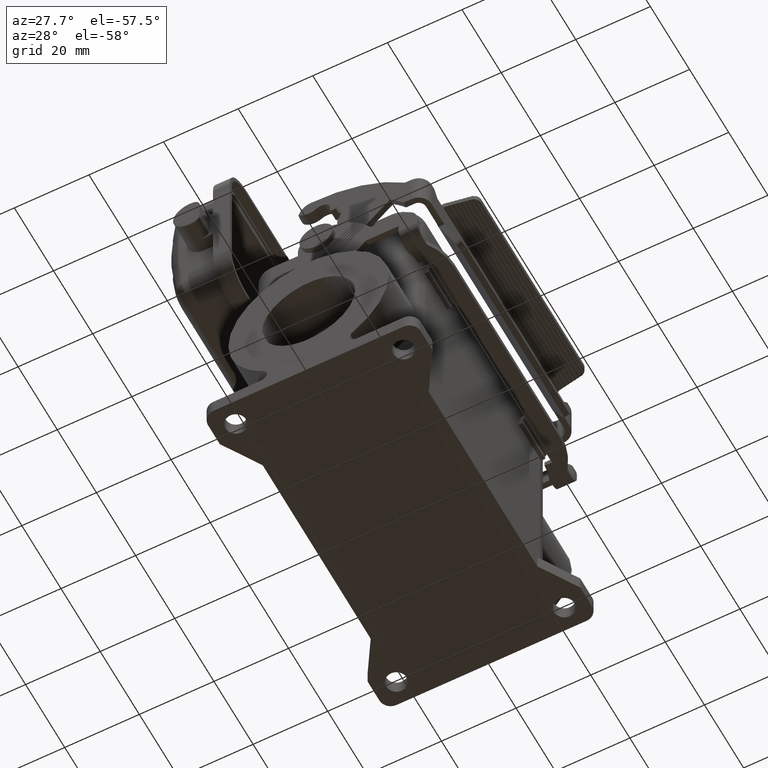
[diagram: clean part render]
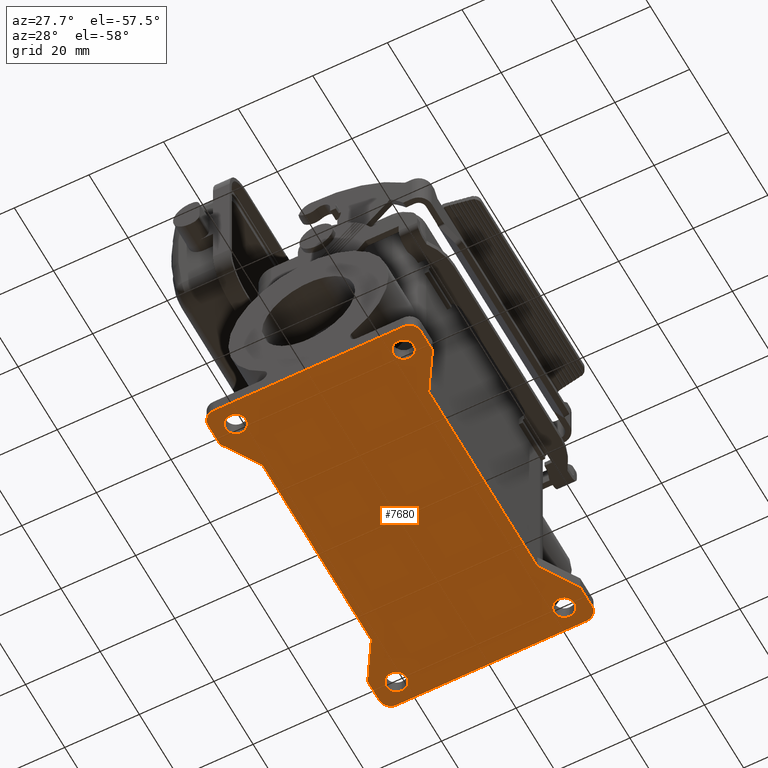
[diagram: same view with one face highlighted and labeled with its STEP entity id]
A machine part, auxiliary view. The second image highlights one B-rep face of the part: STEP entity #7680.
In plain terms, the highlighted planar face has unit normal (0, 0, 1).
Its self-contained STEP definition (entity closure, byte-faithful):
#5690=CARTESIAN_POINT('',(-1.387779E-15,2.775558E-16,-64.));
#5700=DIRECTION('',(0.,0.,1.));
#5710=DIRECTION('',(1.,0.,0.));
#5720=AXIS2_PLACEMENT_3D('',#5690,#5700,#5710);
#5730=PLANE('',#5720);
#5740=CARTESIAN_POINT('',(41.,22.5,-64.));
#5750=DIRECTION('',(0.,0.,1.));
#5760=DIRECTION('',(-1.,0.,0.));
#5770=AXIS2_PLACEMENT_3D('',#5740,#5750,#5760);
#5780=CIRCLE('',#5770,2.75);
#5790=CARTESIAN_POINT('',(38.25,22.5,-64.));
#5800=VERTEX_POINT('',#5790);
#5810=CARTESIAN_POINT('',(43.75,22.5,-64.));
#5820=VERTEX_POINT('',#5810);
#5830=EDGE_CURVE('',#5800,#5820,#5780,.T.);
#5840=ORIENTED_EDGE('',*,*,#5830,.T.);
#5850=EDGE_CURVE('',#5820,#5800,#5780,.T.);
#5860=ORIENTED_EDGE('',*,*,#5850,.T.);
#5870=EDGE_LOOP('',(#5860,#5840));
#5880=FACE_BOUND('',#5870,.T.);
#5890=CARTESIAN_POINT('',(-41.,-22.5,-64.));
#5900=DIRECTION('',(0.,0.,1.));
#5910=DIRECTION('',(-1.,0.,0.));
#5920=AXIS2_PLACEMENT_3D('',#5890,#5900,#5910);
#5930=CIRCLE('',#5920,2.75);
#5940=CARTESIAN_POINT('',(-43.75,-22.5,-64.));
#5950=VERTEX_POINT('',#5940);
#5960=CARTESIAN_POINT('',(-38.25,-22.5,-64.));
#5970=VERTEX_POINT('',#5960);
#5980=EDGE_CURVE('',#5950,#5970,#5930,.T.);
#5990=ORIENTED_EDGE('',*,*,#5980,.T.);
#6000=EDGE_CURVE('',#5970,#5950,#5930,.T.);
#6010=ORIENTED_EDGE('',*,*,#6000,.T.);
#6020=EDGE_LOOP('',(#6010,#5990));
#6030=FACE_BOUND('',#6020,.T.);
#6040=CARTESIAN_POINT('',(-41.,22.5,-64.));
#6050=DIRECTION('',(0.,0.,1.));
#6060=DIRECTION('',(-1.,0.,0.));
#6070=AXIS2_PLACEMENT_3D('',#6040,#6050,#6060);
#6080=CIRCLE('',#6070,2.75);
#6090=CARTESIAN_POINT('',(-38.25,22.5,-64.));
#6100=VERTEX_POINT('',#6090);
#6110=CARTESIAN_POINT('',(-43.75,22.5,-64.));
#6120=VERTEX_POINT('',#6110);
#6130=EDGE_CURVE('',#6100,#6120,#6080,.T.);
#6140=ORIENTED_EDGE('',*,*,#6130,.T.);
#6150=EDGE_CURVE('',#6120,#6100,#6080,.T.);
#6160=ORIENTED_EDGE('',*,*,#6150,.T.);
#6170=EDGE_LOOP('',(#6160,#6140));
#6180=FACE_BOUND('',#6170,.T.);
#6190=CARTESIAN_POINT('',(41.,-22.5,-64.));
#6200=DIRECTION('',(0.,0.,1.));
#6210=DIRECTION('',(-1.,0.,0.));
#6220=AXIS2_PLACEMENT_3D('',#6190,#6200,#6210);
#6230=CIRCLE('',#6220,2.75);
#6240=CARTESIAN_POINT('',(38.25,-22.5,-64.));
#6250=VERTEX_POINT('',#6240);
#6260=CARTESIAN_POINT('',(43.75,-22.5,-64.));
#6270=VERTEX_POINT('',#6260);
#6280=EDGE_CURVE('',#6250,#6270,#6230,.T.);
#6290=ORIENTED_EDGE('',*,*,#6280,.T.);
#6300=EDGE_CURVE('',#6270,#6250,#6230,.T.);
#6310=ORIENTED_EDGE('',*,*,#6300,.T.);
#6320=EDGE_LOOP('',(#6310,#6290));
#6330=FACE_BOUND('',#6320,.T.);
#6340=CARTESIAN_POINT('',(-43.75,-25.5,-64.));
#6350=DIRECTION('',(0.,0.,1.));
#6360=DIRECTION('',(1.,0.,-0.));
#6370=AXIS2_PLACEMENT_3D('',#6340,#6350,#6360);
#6380=CIRCLE('',#6370,3.);
#6390=CARTESIAN_POINT('',(-46.75,-25.5,-64.));
#6400=VERTEX_POINT('',#6390);
#6410=CARTESIAN_POINT('',(-43.75,-28.5,-64.));
#6420=VERTEX_POINT('',#6410);
#6430=EDGE_CURVE('',#6400,#6420,#6380,.T.);
#6440=ORIENTED_EDGE('',*,*,#6430,.F.);
#6450=CARTESIAN_POINT('',(-37.75,-28.5,-64.));
#6460=DIRECTION('',(-1.,0.,0.));
#6470=VECTOR('',#6460,9.00000000000001);
#6480=LINE('',#6450,#6470);
#6490=CARTESIAN_POINT('',(-37.75,-28.5,-64.));
#6500=VERTEX_POINT('',#6490);
#6510=EDGE_CURVE('',#6500,#6420,#6480,.T.);
#6520=ORIENTED_EDGE('',*,*,#6510,.T.);
#6530=CARTESIAN_POINT('',(-27.75,-22.25,-64.));
#6540=DIRECTION('',(-0.847998304005088,-0.52999894000318,0.));
#6550=VECTOR('',#6540,11.7924764150708);
#6560=LINE('',#6530,#6550);
#6570=CARTESIAN_POINT('',(-27.75,-22.25,-64.));
#6580=VERTEX_POINT('',#6570);
#6590=EDGE_CURVE('',#6580,#6500,#6560,.T.);
#6600=ORIENTED_EDGE('',*,*,#6590,.T.);
#6610=CARTESIAN_POINT('',(27.75,-22.25,-64.));
#6620=DIRECTION('',(-1.,0.,0.));
#6630=VECTOR('',#6620,55.5);
#6640=LINE('',#6610,#6630);
#6650=CARTESIAN_POINT('',(27.75,-22.25,-64.));
#6660=VERTEX_POINT('',#6650);
#6670=EDGE_CURVE('',#6660,#6580,#6640,.T.);
#6680=ORIENTED_EDGE('',*,*,#6670,.T.);
#6690=CARTESIAN_POINT('',(37.75,-28.5,-64.));
#6700=DIRECTION('',(-0.847998304005088,0.52999894000318,0.));
#6710=VECTOR('',#6700,11.7924764150708);
#6720=LINE('',#6690,#6710);
#6730=CARTESIAN_POINT('',(37.75,-28.5,-64.));
#6740=VERTEX_POINT('',#6730);
#6750=EDGE_CURVE('',#6740,#6660,#6720,.T.);
#6760=ORIENTED_EDGE('',*,*,#6750,.T.);
#6770=CARTESIAN_POINT('',(46.75,-28.5,-64.));
#6780=DIRECTION('',(-1.,0.,0.));
#6790=VECTOR('',#6780,9.00000000000001);
#6800=LINE('',#6770,#6790);
#6810=CARTESIAN_POINT('',(43.75,-28.5,-64.));
#6820=VERTEX_POINT('',#6810);
#6830=EDGE_CURVE('',#6820,#6740,#6800,.T.);
#6840=ORIENTED_EDGE('',*,*,#6830,.T.);
#6850=CARTESIAN_POINT('',(43.75,-25.5,-64.));
#6860=DIRECTION('',(0.,-0.,-1.));
#6870=DIRECTION('',(-1.,0.,0.));
#6880=AXIS2_PLACEMENT_3D('',#6850,#6860,#6870);
#6890=CIRCLE('',#6880,3.);
#6900=CARTESIAN_POINT('',(46.75,-25.5,-64.));
#6910=VERTEX_POINT('',#6900);
#6920=EDGE_CURVE('',#6910,#6820,#6890,.T.);
#6930=ORIENTED_EDGE('',*,*,#6920,.T.);
#6940=CARTESIAN_POINT('',(46.75,28.5,-64.));
#6950=DIRECTION('',(0.,-1.,0.));
#6960=VECTOR('',#6950,57.);
#6970=LINE('',#6940,#6960);
#6980=CARTESIAN_POINT('',(46.75,25.5,-64.));
#6990=VERTEX_POINT('',#6980);
#7000=EDGE_CURVE('',#6990,#6910,#6970,.T.);
#7010=ORIENTED_EDGE('',*,*,#7000,.T.);
#7020=CARTESIAN_POINT('',(43.75,25.5,-64.));
#7030=DIRECTION('',(0.,0.,-1.));
#7040=DIRECTION('',(-1.,0.,0.));
#7050=AXIS2_PLACEMENT_3D('',#7020,#7030,#7040);
#7060=CIRCLE('',#7050,3.);
#7070=CARTESIAN_POINT('',(43.75,28.5,-64.));
#7080=VERTEX_POINT('',#7070);
#7090=EDGE_CURVE('',#7080,#6990,#7060,.T.);
#7100=ORIENTED_EDGE('',*,*,#7090,.T.);
#7110=CARTESIAN_POINT('',(37.75,28.5,-64.));
#7120=DIRECTION('',(1.,0.,0.));
#7130=VECTOR('',#7120,9.00000000000001);
#7140=LINE('',#7110,#7130);
#7150=CARTESIAN_POINT('',(37.75,28.5,-64.));
#7160=VERTEX_POINT('',#7150);
#7170=EDGE_CURVE('',#7160,#7080,#7140,.T.);
#7180=ORIENTED_EDGE('',*,*,#7170,.T.);
#7190=CARTESIAN_POINT('',(27.75,22.25,-64.));
#7200=DIRECTION('',(0.847998304005088,0.52999894000318,0.));
#7210=VECTOR('',#7200,11.7924764150708);
#7220=LINE('',#7190,#7210);
#7230=CARTESIAN_POINT('',(27.75,22.25,-64.));
#7240=VERTEX_POINT('',#7230);
#7250=EDGE_CURVE('',#7240,#7160,#7220,.T.);
#7260=ORIENTED_EDGE('',*,*,#7250,.T.);
#7270=CARTESIAN_POINT('',(-27.75,22.25,-64.));
#7280=DIRECTION('',(1.,0.,0.));
#7290=VECTOR('',#7280,55.5);
#7300=LINE('',#7270,#7290);
#7310=CARTESIAN_POINT('',(-27.75,22.25,-64.));
#7320=VERTEX_POINT('',#7310);
#7330=EDGE_CURVE('',#7320,#7240,#7300,.T.);
#7340=ORIENTED_EDGE('',*,*,#7330,.T.);
#7350=CARTESIAN_POINT('',(-37.75,28.5,-64.));
#7360=DIRECTION('',(0.847998304005088,-0.52999894000318,0.));
#7370=VECTOR('',#7360,11.7924764150708);
#7380=LINE('',#7350,#7370);
#7390=CARTESIAN_POINT('',(-37.75,28.5,-64.));
#7400=VERTEX_POINT('',#7390);
#7410=EDGE_CURVE('',#7400,#7320,#7380,.T.);
#7420=ORIENTED_EDGE('',*,*,#7410,.T.);
#7430=CARTESIAN_POINT('',(-46.75,28.5,-64.));
#7440=DIRECTION('',(1.,0.,0.));
#7450=VECTOR('',#7440,9.00000000000001);
#7460=LINE('',#7430,#7450);
#7470=CARTESIAN_POINT('',(-43.75,28.5,-64.));
#7480=VERTEX_POINT('',#7470);
#7490=EDGE_CURVE('',#7480,#7400,#7460,.T.);
#7500=ORIENTED_EDGE('',*,*,#7490,.T.);
#7510=CARTESIAN_POINT('',(-43.75,25.5,-64.));
#7520=DIRECTION('',(0.,0.,-1.));
#7530=DIRECTION('',(-1.,0.,0.));
#7540=AXIS2_PLACEMENT_3D('',#7510,#7520,#7530);
#7550=CIRCLE('',#7540,3.);
#7560=CARTESIAN_POINT('',(-46.75,25.5,-64.));
#7570=VERTEX_POINT('',#7560);
#7580=EDGE_CURVE('',#7570,#7480,#7550,.T.);
#7590=ORIENTED_EDGE('',*,*,#7580,.T.);
#7600=CARTESIAN_POINT('',(-46.75,-28.5,-64.));
#7610=DIRECTION('',(0.,1.,0.));
#7620=VECTOR('',#7610,57.);
#7630=LINE('',#7600,#7620);
#7640=EDGE_CURVE('',#6400,#7570,#7630,.T.);
#7650=ORIENTED_EDGE('',*,*,#7640,.T.);
#7660=EDGE_LOOP('',(#7650,#7590,#7500,#7420,#7340,#7260,#7180,#7100,
#7010,#6930,#6840,#6760,#6680,#6600,#6520,#6440));
#7670=FACE_OUTER_BOUND('',#7660,.T.);
#7680=ADVANCED_FACE('',(#5880,#6030,#6180,#6330,#7670),#5730,.F.);